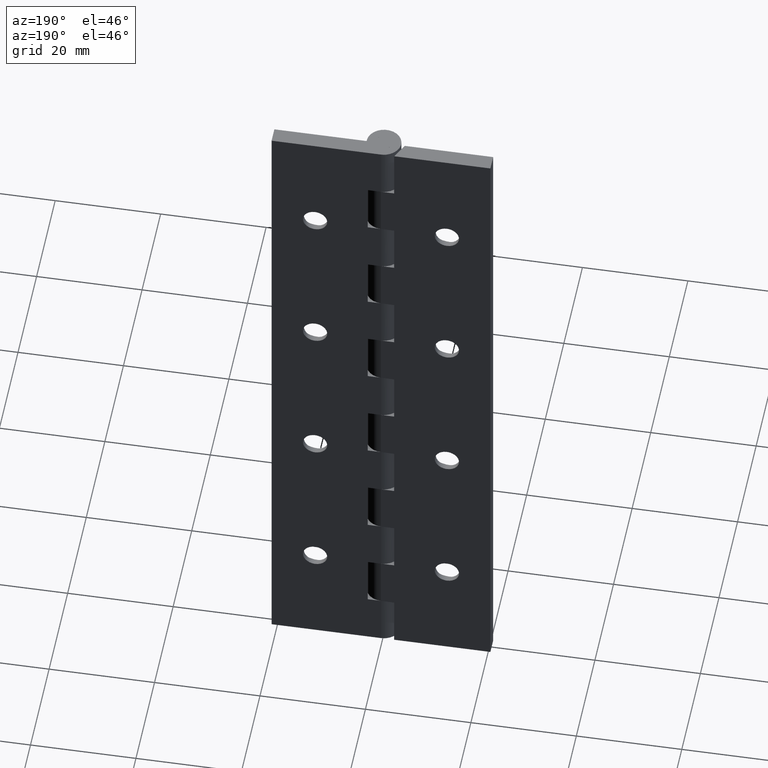
[diagram: clean part render]
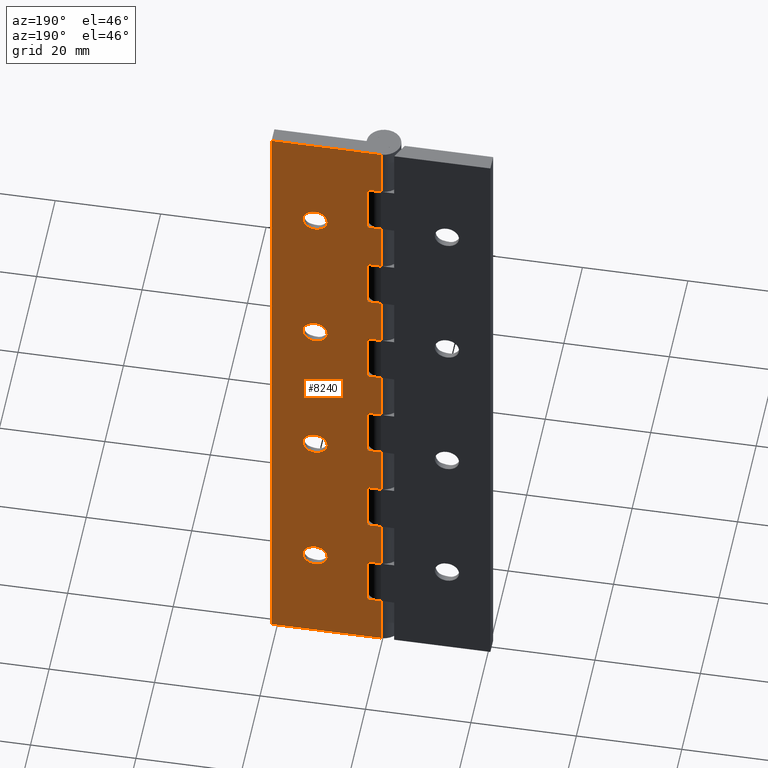
[diagram: same view with one face highlighted and labeled with its STEP entity id]
A machine part, auxiliary view. The second image highlights one B-rep face of the part: STEP entity #8240.
In plain terms, the highlighted face is a freeform B-spline surface patch.
Its self-contained STEP definition (entity closure, byte-faithful):
#4178=CARTESIAN_POINT('',(14.795709798106390,3.250002000000000,110.140407536402510));
#4179=VERTEX_POINT('',#4178);
#4180=CARTESIAN_POINT('',(12.500000000000000,3.250002000000000,107.699992000000410));
#4181=VERTEX_POINT('',#4180);
#4182=CARTESIAN_POINT('',(14.795709798106389,3.250001999999999,110.140407536402510));
#4183=CARTESIAN_POINT('',(14.799999999996738,3.250001999999999,110.070265308784430));
#4184=CARTESIAN_POINT('',(14.799999999996791,3.250002000000000,109.999992000000200));
#4185=CARTESIAN_POINT('',(14.799999999998439,3.250002000000001,107.699992000000320));
#4186=CARTESIAN_POINT('',(12.500000000000000,3.250002000000000,107.699992000000410));
#4194=(BOUNDED_CURVE()B_SPLINE_CURVE(2,(#4182,#4183,#4184,#4185,#4186),.UNSPECIFIED.,.F.,.U.)B_SPLINE_CURVE_WITH_KNOTS((3,2,3),(0.239332669456283,0.250000000000000,0.500000000000000),.UNSPECIFIED.)CURVE()GEOMETRIC_REPRESENTATION_ITEM()RATIONAL_B_SPLINE_CURVE((0.976071414178547,0.987502444883614,1.0,0.707106781186547,1.0))REPRESENTATION_ITEM(''));
#4195=EDGE_CURVE('',#4179,#4181,#4194,.T.);
#4197=CARTESIAN_POINT('',(10.204290201893610,3.250002000000000,109.859576463598300));
#4198=VERTEX_POINT('',#4197);
#4199=CARTESIAN_POINT('',(12.500000000000000,3.250002000000000,107.699992000000410));
#4200=CARTESIAN_POINT('',(10.336379724318482,3.250001999999999,107.699992000000490));
#4201=CARTESIAN_POINT('',(10.204290201893613,3.250002000000001,109.859576463598290));
#4209=(BOUNDED_CURVE()B_SPLINE_CURVE(2,(#4199,#4200,#4201),.UNSPECIFIED.,.F.,.U.)B_SPLINE_CURVE_WITH_KNOTS((3,3),(0.500000000000000,0.739332669456284),.UNSPECIFIED.)CURVE()GEOMETRIC_REPRESENTATION_ITEM()RATIONAL_B_SPLINE_CURVE((1.0,0.719604336302932,0.976071414178550))REPRESENTATION_ITEM(''));
#4210=EDGE_CURVE('',#4181,#4198,#4209,.T.);
#4277=CARTESIAN_POINT('',(12.500000000000000,3.250002000000000,112.299992000000400));
#4278=VERTEX_POINT('',#4277);
#4279=CARTESIAN_POINT('',(12.500000000000000,3.250002000000000,112.299992000000400));
#4280=CARTESIAN_POINT('',(14.663620275681504,3.250002000000001,112.299992000000300));
#4281=CARTESIAN_POINT('',(14.795709798106385,3.250001999999999,110.140407536402580));
#4289=(BOUNDED_CURVE()B_SPLINE_CURVE(2,(#4279,#4280,#4281),.UNSPECIFIED.,.F.,.U.)B_SPLINE_CURVE_WITH_KNOTS((3,3),(0.0,0.239332669456283),.UNSPECIFIED.)CURVE()GEOMETRIC_REPRESENTATION_ITEM()RATIONAL_B_SPLINE_CURVE((1.0,0.719604336302933,0.976071414178547))REPRESENTATION_ITEM(''));
#4290=EDGE_CURVE('',#4278,#4179,#4289,.T.);
#4324=CARTESIAN_POINT('',(10.204290201893613,3.250002000000000,109.859576463598320));
#4325=CARTESIAN_POINT('',(10.200000000003261,3.250002000000000,109.929718691216390));
#4326=CARTESIAN_POINT('',(10.200000000003209,3.250002000000000,109.999992000000600));
#4327=CARTESIAN_POINT('',(10.200000000001555,3.250002000000001,112.299992000000500));
#4328=CARTESIAN_POINT('',(12.500000000000000,3.250002000000000,112.299992000000400));
#4336=(BOUNDED_CURVE()B_SPLINE_CURVE(2,(#4324,#4325,#4326,#4327,#4328),.UNSPECIFIED.,.F.,.U.)B_SPLINE_CURVE_WITH_KNOTS((3,2,3),(0.739332669456284,0.750000000000000,1.0),.UNSPECIFIED.)CURVE()GEOMETRIC_REPRESENTATION_ITEM()RATIONAL_B_SPLINE_CURVE((0.976071414178550,0.987502444883616,1.0,0.707106781186547,1.0))REPRESENTATION_ITEM(''));
#4337=EDGE_CURVE('',#4198,#4278,#4336,.T.);
#4490=CARTESIAN_POINT('',(14.795709798106390,3.250002000000000,80.140407536402435));
#4491=VERTEX_POINT('',#4490);
#4492=CARTESIAN_POINT('',(12.500000000000000,3.250002000000000,77.699992000000321));
#4493=VERTEX_POINT('',#4492);
#4494=CARTESIAN_POINT('',(14.795709798106390,3.250002000000000,80.140407536402435));
#4495=CARTESIAN_POINT('',(14.799999999996741,3.250002000000000,80.070265308784343));
#4496=CARTESIAN_POINT('',(14.799999999996791,3.250002000000001,79.999992000000091));
#4497=CARTESIAN_POINT('',(14.799999999998439,3.250002000000001,77.699992000000236));
#4498=CARTESIAN_POINT('',(12.500000000000000,3.250002000000000,77.699992000000321));
#4506=(BOUNDED_CURVE()B_SPLINE_CURVE(2,(#4494,#4495,#4496,#4497,#4498),.UNSPECIFIED.,.F.,.U.)B_SPLINE_CURVE_WITH_KNOTS((3,2,3),(0.239332669456283,0.250000000000000,0.500000000000000),.UNSPECIFIED.)CURVE()GEOMETRIC_REPRESENTATION_ITEM()RATIONAL_B_SPLINE_CURVE((0.976071414178548,0.987502444883615,1.0,0.707106781186547,1.0))REPRESENTATION_ITEM(''));
#4507=EDGE_CURVE('',#4491,#4493,#4506,.T.);
#4509=CARTESIAN_POINT('',(10.204290201893610,3.250002000000000,79.859576463598160));
#4510=VERTEX_POINT('',#4509);
#4511=CARTESIAN_POINT('',(12.500000000000000,3.250002000000000,77.699992000000321));
#4512=CARTESIAN_POINT('',(10.336379724318491,3.250002000000000,77.699992000000421));
#4513=CARTESIAN_POINT('',(10.204290201893613,3.250002000000001,79.859576463598160));
#4521=(BOUNDED_CURVE()B_SPLINE_CURVE(2,(#4511,#4512,#4513),.UNSPECIFIED.,.F.,.U.)B_SPLINE_CURVE_WITH_KNOTS((3,3),(0.500000000000000,0.739332669456283),.UNSPECIFIED.)CURVE()GEOMETRIC_REPRESENTATION_ITEM()RATIONAL_B_SPLINE_CURVE((1.0,0.719604336302933,0.976071414178548))REPRESENTATION_ITEM(''));
#4522=EDGE_CURVE('',#4493,#4510,#4521,.T.);
#4589=CARTESIAN_POINT('',(12.500000000000000,3.250002000000000,82.299992000000302));
#4590=VERTEX_POINT('',#4589);
#4591=CARTESIAN_POINT('',(12.500000000000000,3.250002000000000,82.299992000000302));
#4592=CARTESIAN_POINT('',(14.663620275681509,3.250002000000000,82.299992000000188));
#4593=CARTESIAN_POINT('',(14.795709798106390,3.250002000000000,80.140407536402435));
#4601=(BOUNDED_CURVE()B_SPLINE_CURVE(2,(#4591,#4592,#4593),.UNSPECIFIED.,.F.,.U.)B_SPLINE_CURVE_WITH_KNOTS((3,3),(0.0,0.239332669456283),.UNSPECIFIED.)CURVE()GEOMETRIC_REPRESENTATION_ITEM()RATIONAL_B_SPLINE_CURVE((1.0,0.719604336302933,0.976071414178548))REPRESENTATION_ITEM(''));
#4602=EDGE_CURVE('',#4590,#4491,#4601,.T.);
#4636=CARTESIAN_POINT('',(10.204290201893613,3.250002000000000,79.859576463598160));
#4637=CARTESIAN_POINT('',(10.200000000003255,3.250002000000000,79.929718691216237));
#4638=CARTESIAN_POINT('',(10.200000000003209,3.250002000000000,79.999992000000489));
#4639=CARTESIAN_POINT('',(10.200000000001555,3.250002000000001,82.299992000000387));
#4640=CARTESIAN_POINT('',(12.500000000000000,3.250002000000000,82.299992000000302));
#4648=(BOUNDED_CURVE()B_SPLINE_CURVE(2,(#4636,#4637,#4638,#4639,#4640),.UNSPECIFIED.,.F.,.U.)B_SPLINE_CURVE_WITH_KNOTS((3,2,3),(0.739332669456283,0.750000000000000,1.0),.UNSPECIFIED.)CURVE()GEOMETRIC_REPRESENTATION_ITEM()RATIONAL_B_SPLINE_CURVE((0.976071414178547,0.987502444883614,1.0,0.707106781186547,1.0))REPRESENTATION_ITEM(''));
#4649=EDGE_CURVE('',#4510,#4590,#4648,.T.);
#4802=CARTESIAN_POINT('',(14.795709798106390,3.250002000000000,50.140407536402243));
#4803=VERTEX_POINT('',#4802);
#4804=CARTESIAN_POINT('',(12.500000000000000,3.250002000000000,47.699992000000087));
#4805=VERTEX_POINT('',#4804);
#4806=CARTESIAN_POINT('',(14.795709798106387,3.250002000000001,50.140407536402236));
#4807=CARTESIAN_POINT('',(14.799999999996745,3.250002000000000,50.070265308784158));
#4808=CARTESIAN_POINT('',(14.799999999996791,3.250002000000000,49.999991999999907));
#4809=CARTESIAN_POINT('',(14.799999999998439,3.250002000000001,47.699992000000009));
#4810=CARTESIAN_POINT('',(12.500000000000000,3.250002000000000,47.699992000000087));
#4818=(BOUNDED_CURVE()B_SPLINE_CURVE(2,(#4806,#4807,#4808,#4809,#4810),.UNSPECIFIED.,.F.,.U.)B_SPLINE_CURVE_WITH_KNOTS((3,2,3),(0.239332669456284,0.250000000000000,0.500000000000000),.UNSPECIFIED.)CURVE()GEOMETRIC_REPRESENTATION_ITEM()RATIONAL_B_SPLINE_CURVE((0.976071414178549,0.987502444883615,1.0,0.707106781186547,1.0))REPRESENTATION_ITEM(''));
#4819=EDGE_CURVE('',#4803,#4805,#4818,.T.);
#4821=CARTESIAN_POINT('',(10.204290201893610,3.250002000000000,49.859576463597961));
#4822=VERTEX_POINT('',#4821);
#4823=CARTESIAN_POINT('',(12.500000000000000,3.250002000000000,47.699992000000087));
#4824=CARTESIAN_POINT('',(10.336379724318491,3.250002000000000,47.699992000000201));
#4825=CARTESIAN_POINT('',(10.204290201893613,3.250002000000001,49.859576463597961));
#4833=(BOUNDED_CURVE()B_SPLINE_CURVE(2,(#4823,#4824,#4825),.UNSPECIFIED.,.F.,.U.)B_SPLINE_CURVE_WITH_KNOTS((3,3),(0.500000000000000,0.739332669456283),.UNSPECIFIED.)CURVE()GEOMETRIC_REPRESENTATION_ITEM()RATIONAL_B_SPLINE_CURVE((1.0,0.719604336302933,0.976071414178548))REPRESENTATION_ITEM(''));
#4834=EDGE_CURVE('',#4805,#4822,#4833,.T.);
#4901=CARTESIAN_POINT('',(12.500000000000000,3.250002000000000,52.299992000000103));
#4902=VERTEX_POINT('',#4901);
#4903=CARTESIAN_POINT('',(12.500000000000000,3.250002000000000,52.299992000000103));
#4904=CARTESIAN_POINT('',(14.663620275681509,3.250002000000000,52.299991999999996));
#4905=CARTESIAN_POINT('',(14.795709798106390,3.250002000000000,50.140407536402243));
#4913=(BOUNDED_CURVE()B_SPLINE_CURVE(2,(#4903,#4904,#4905),.UNSPECIFIED.,.F.,.U.)B_SPLINE_CURVE_WITH_KNOTS((3,3),(0.0,0.239332669456283),.UNSPECIFIED.)CURVE()GEOMETRIC_REPRESENTATION_ITEM()RATIONAL_B_SPLINE_CURVE((1.0,0.719604336302933,0.976071414178548))REPRESENTATION_ITEM(''));
#4914=EDGE_CURVE('',#4902,#4803,#4913,.T.);
#4948=CARTESIAN_POINT('',(10.204290201893613,3.250002000000000,49.859576463597961));
#4949=CARTESIAN_POINT('',(10.200000000003255,3.250002000000000,49.929718691216038));
#4950=CARTESIAN_POINT('',(10.200000000003209,3.250002000000000,49.999992000000297));
#4951=CARTESIAN_POINT('',(10.200000000001555,3.250002000000001,52.299992000000202));
#4952=CARTESIAN_POINT('',(12.500000000000000,3.250002000000000,52.299992000000103));
#4960=(BOUNDED_CURVE()B_SPLINE_CURVE(2,(#4948,#4949,#4950,#4951,#4952),.UNSPECIFIED.,.F.,.U.)B_SPLINE_CURVE_WITH_KNOTS((3,2,3),(0.739332669456283,0.750000000000000,1.0),.UNSPECIFIED.)CURVE()GEOMETRIC_REPRESENTATION_ITEM()RATIONAL_B_SPLINE_CURVE((0.976071414178547,0.987502444883614,1.0,0.707106781186547,1.0))REPRESENTATION_ITEM(''));
#4961=EDGE_CURVE('',#4822,#4902,#4960,.T.);
#5114=CARTESIAN_POINT('',(14.795709798106390,3.250002000000000,20.140407536402030));
#5115=VERTEX_POINT('',#5114);
#5116=CARTESIAN_POINT('',(12.500000000000000,3.250002000000000,17.699991999999899));
#5117=VERTEX_POINT('',#5116);
#5118=CARTESIAN_POINT('',(14.795709798106390,3.250002000000000,20.140407536402034));
#5119=CARTESIAN_POINT('',(14.799999999996746,3.250002000000000,20.070265308783945));
#5120=CARTESIAN_POINT('',(14.799999999996791,3.250002000000001,19.999991999999711));
#5121=CARTESIAN_POINT('',(14.799999999998439,3.250002000000001,17.699991999999817));
#5122=CARTESIAN_POINT('',(12.500000000000000,3.250002000000000,17.699991999999899));
#5130=(BOUNDED_CURVE()B_SPLINE_CURVE(2,(#5118,#5119,#5120,#5121,#5122),.UNSPECIFIED.,.F.,.U.)B_SPLINE_CURVE_WITH_KNOTS((3,2,3),(0.239332669456283,0.250000000000000,0.500000000000000),.UNSPECIFIED.)CURVE()GEOMETRIC_REPRESENTATION_ITEM()RATIONAL_B_SPLINE_CURVE((0.976071414178548,0.987502444883615,1.0,0.707106781186547,1.0))REPRESENTATION_ITEM(''));
#5131=EDGE_CURVE('',#5115,#5117,#5130,.T.);
#5133=CARTESIAN_POINT('',(10.204290201893610,3.250002000000001,19.859576463597769));
#5134=VERTEX_POINT('',#5133);
#5135=CARTESIAN_POINT('',(12.500000000000000,3.250002000000000,17.699991999999899));
#5136=CARTESIAN_POINT('',(10.336379724318491,3.250002000000000,17.699992000000002));
#5137=CARTESIAN_POINT('',(10.204290201893613,3.250002000000001,19.859576463597769));
#5145=(BOUNDED_CURVE()B_SPLINE_CURVE(2,(#5135,#5136,#5137),.UNSPECIFIED.,.F.,.U.)B_SPLINE_CURVE_WITH_KNOTS((3,3),(0.500000000000000,0.739332669456283),.UNSPECIFIED.)CURVE()GEOMETRIC_REPRESENTATION_ITEM()RATIONAL_B_SPLINE_CURVE((1.0,0.719604336302933,0.976071414178548))REPRESENTATION_ITEM(''));
#5146=EDGE_CURVE('',#5117,#5134,#5145,.T.);
#5213=CARTESIAN_POINT('',(12.500000000000000,3.250002000000000,22.299991999999900));
#5214=VERTEX_POINT('',#5213);
#5215=CARTESIAN_POINT('',(12.500000000000000,3.250002000000000,22.299991999999900));
#5216=CARTESIAN_POINT('',(14.663620275681517,3.250002000000001,22.299991999999801));
#5217=CARTESIAN_POINT('',(14.795709798106390,3.250002000000000,20.140407536402034));
#5225=(BOUNDED_CURVE()B_SPLINE_CURVE(2,(#5215,#5216,#5217),.UNSPECIFIED.,.F.,.U.)B_SPLINE_CURVE_WITH_KNOTS((3,3),(0.0,0.239332669456283),.UNSPECIFIED.)CURVE()GEOMETRIC_REPRESENTATION_ITEM()RATIONAL_B_SPLINE_CURVE((1.0,0.719604336302932,0.976071414178548))REPRESENTATION_ITEM(''));
#5226=EDGE_CURVE('',#5214,#5115,#5225,.T.);
#5260=CARTESIAN_POINT('',(10.204290201893613,3.250002000000001,19.859576463597769));
#5261=CARTESIAN_POINT('',(10.200000000003261,3.250002000000001,19.929718691215843));
#5262=CARTESIAN_POINT('',(10.200000000003209,3.250002000000001,19.999992000000098));
#5263=CARTESIAN_POINT('',(10.200000000001555,3.250002000000001,22.299991999999985));
#5264=CARTESIAN_POINT('',(12.500000000000000,3.250002000000000,22.299991999999900));
#5272=(BOUNDED_CURVE()B_SPLINE_CURVE(2,(#5260,#5261,#5262,#5263,#5264),.UNSPECIFIED.,.F.,.U.)B_SPLINE_CURVE_WITH_KNOTS((3,2,3),(0.739332669456283,0.750000000000000,1.0),.UNSPECIFIED.)CURVE()GEOMETRIC_REPRESENTATION_ITEM()RATIONAL_B_SPLINE_CURVE((0.976071414178548,0.987502444883615,1.0,0.707106781186547,1.0))REPRESENTATION_ITEM(''));
#5273=EDGE_CURVE('',#5134,#5214,#5272,.T.);
#6740=CARTESIAN_POINT('',(-5.969960E-016,3.250002000000000,99.999992000000091));
#6741=VERTEX_POINT('',#6740);
#6768=CARTESIAN_POINT('',(-5.969960E-016,3.250002000000000,109.999992000000010));
#6769=VERTEX_POINT('',#6768);
#6795=CARTESIAN_POINT('',(-5.969960E-016,3.250002000000000,99.999992000000091));
#6796=CARTESIAN_POINT('',(-5.969960E-016,3.250002000000000,109.999992000000010));
#6797=QUASI_UNIFORM_CURVE('',1,(#6795,#6796),.UNSPECIFIED.,.F.,.U.);
#6798=EDGE_CURVE('',#6741,#6769,#6797,.T.);
#6861=CARTESIAN_POINT('',(-5.969960E-016,3.250002000000000,79.999992000000105));
#6862=VERTEX_POINT('',#6861);
#6890=CARTESIAN_POINT('',(-5.969960E-016,3.250002000000000,89.999992000000091));
#6891=VERTEX_POINT('',#6890);
#6917=CARTESIAN_POINT('',(-5.969960E-016,3.250002000000000,79.999992000000105));
#6918=CARTESIAN_POINT('',(-5.969960E-016,3.250002000000000,89.999992000000091));
#6919=QUASI_UNIFORM_CURVE('',1,(#6917,#6918),.UNSPECIFIED.,.F.,.U.);
#6920=EDGE_CURVE('',#6862,#6891,#6919,.T.);
#6983=CARTESIAN_POINT('',(-5.969960E-016,3.250002000000000,59.999992000000098));
#6984=VERTEX_POINT('',#6983);
#7013=CARTESIAN_POINT('',(-5.969960E-016,3.250002000000000,69.999992000000091));
#7014=VERTEX_POINT('',#7013);
#7040=CARTESIAN_POINT('',(-5.969960E-016,3.250002000000000,59.999992000000098));
#7041=CARTESIAN_POINT('',(-5.969960E-016,3.250002000000000,69.999992000000091));
#7042=QUASI_UNIFORM_CURVE('',1,(#7040,#7041),.UNSPECIFIED.,.F.,.U.);
#7043=EDGE_CURVE('',#6984,#7014,#7042,.T.);
#7106=CARTESIAN_POINT('',(-5.969960E-016,3.250002000000000,39.999992000000049));
#7107=VERTEX_POINT('',#7106);
#7134=CARTESIAN_POINT('',(-5.969960E-016,3.250002000000000,49.999992000000098));
#7135=VERTEX_POINT('',#7134);
#7161=CARTESIAN_POINT('',(-5.969960E-016,3.250002000000000,39.999992000000049));
#7162=CARTESIAN_POINT('',(-5.969960E-016,3.250002000000000,49.999992000000098));
#7163=QUASI_UNIFORM_CURVE('',1,(#7161,#7162),.UNSPECIFIED.,.F.,.U.);
#7164=EDGE_CURVE('',#7107,#7135,#7163,.T.);
#7183=CARTESIAN_POINT('',(-5.969960E-016,3.250002000000000,19.999992000000152));
#7184=VERTEX_POINT('',#7183);
#7211=CARTESIAN_POINT('',(2.499982999999825,3.250002000000000,19.999992000000152));
#7212=VERTEX_POINT('',#7211);
#7213=CARTESIAN_POINT('',(-5.969960E-016,3.250002000000000,19.999992000000152));
#7214=CARTESIAN_POINT('',(2.499982999999825,3.250002000000000,19.999992000000152));
#7215=QUASI_UNIFORM_CURVE('',1,(#7213,#7214),.UNSPECIFIED.,.F.,.U.);
#7216=EDGE_CURVE('',#7184,#7212,#7215,.T.);
#7260=CARTESIAN_POINT('',(2.499982999999825,3.250002000000000,9.999992000000120));
#7261=VERTEX_POINT('',#7260);
#7267=CARTESIAN_POINT('',(-5.969960E-016,3.250002000000000,9.999992000000120));
#7268=VERTEX_POINT('',#7267);
#7269=CARTESIAN_POINT('',(-5.969960E-016,3.250002000000000,9.999992000000120));
#7270=CARTESIAN_POINT('',(2.499982999999825,3.250002000000000,9.999992000000120));
#7271=QUASI_UNIFORM_CURVE('',1,(#7269,#7270),.UNSPECIFIED.,.F.,.U.);
#7272=EDGE_CURVE('',#7268,#7261,#7271,.T.);
#7315=CARTESIAN_POINT('',(2.499982999999825,3.250002000000000,9.999992000000120));
#7316=CARTESIAN_POINT('',(2.499982999999825,3.250002000000000,19.999992000000152));
#7317=QUASI_UNIFORM_CURVE('',1,(#7315,#7316),.UNSPECIFIED.,.F.,.U.);
#7318=EDGE_CURVE('',#7261,#7212,#7317,.T.);
#7336=CARTESIAN_POINT('',(2.499982999999825,3.250002000000000,39.999992000000049));
#7337=VERTEX_POINT('',#7336);
#7338=CARTESIAN_POINT('',(-5.969960E-016,3.250002000000000,39.999992000000049));
#7339=CARTESIAN_POINT('',(2.499982999999825,3.250002000000000,39.999992000000049));
#7340=QUASI_UNIFORM_CURVE('',1,(#7338,#7339),.UNSPECIFIED.,.F.,.U.);
#7341=EDGE_CURVE('',#7107,#7337,#7340,.T.);
#7385=CARTESIAN_POINT('',(2.499982999999825,3.250002000000000,29.999992000000049));
#7386=VERTEX_POINT('',#7385);
#7392=CARTESIAN_POINT('',(-5.969960E-016,3.250002000000000,29.999992000000049));
#7393=VERTEX_POINT('',#7392);
#7394=CARTESIAN_POINT('',(-5.969960E-016,3.250002000000000,29.999992000000049));
#7395=CARTESIAN_POINT('',(2.499982999999825,3.250002000000000,29.999992000000049));
#7396=QUASI_UNIFORM_CURVE('',1,(#7394,#7395),.UNSPECIFIED.,.F.,.U.);
#7397=EDGE_CURVE('',#7393,#7386,#7396,.T.);
#7440=CARTESIAN_POINT('',(2.499982999999825,3.250002000000000,29.999992000000049));
#7441=CARTESIAN_POINT('',(2.499982999999825,3.250002000000000,39.999992000000049));
#7442=QUASI_UNIFORM_CURVE('',1,(#7440,#7441),.UNSPECIFIED.,.F.,.U.);
#7443=EDGE_CURVE('',#7386,#7337,#7442,.T.);
#7461=CARTESIAN_POINT('',(2.499982999999825,3.250002000000000,59.999992000000098));
#7462=VERTEX_POINT('',#7461);
#7463=CARTESIAN_POINT('',(-5.969960E-016,3.250002000000000,59.999992000000098));
#7464=CARTESIAN_POINT('',(2.499982999999825,3.250002000000000,59.999992000000098));
#7465=QUASI_UNIFORM_CURVE('',1,(#7463,#7464),.UNSPECIFIED.,.F.,.U.);
#7466=EDGE_CURVE('',#6984,#7462,#7465,.T.);
#7502=CARTESIAN_POINT('',(2.499982999999825,3.250002000000000,49.999992000000098));
#7503=VERTEX_POINT('',#7502);
#7509=CARTESIAN_POINT('',(-5.969960E-016,3.250002000000000,49.999992000000098));
#7510=CARTESIAN_POINT('',(2.499982999999825,3.250002000000000,49.999992000000098));
#7511=QUASI_UNIFORM_CURVE('',1,(#7509,#7510),.UNSPECIFIED.,.F.,.U.);
#7512=EDGE_CURVE('',#7135,#7503,#7511,.T.);
#7530=CARTESIAN_POINT('',(2.499982999999825,3.250002000000000,49.999992000000098));
#7531=CARTESIAN_POINT('',(2.499982999999825,3.250002000000000,59.999992000000098));
#7532=QUASI_UNIFORM_CURVE('',1,(#7530,#7531),.UNSPECIFIED.,.F.,.U.);
#7533=EDGE_CURVE('',#7503,#7462,#7532,.T.);
#7551=CARTESIAN_POINT('',(2.499982999999825,3.250002000000000,79.999992000000105));
#7552=VERTEX_POINT('',#7551);
#7553=CARTESIAN_POINT('',(-5.969960E-016,3.250002000000000,79.999992000000105));
#7554=CARTESIAN_POINT('',(2.499982999999825,3.250002000000000,79.999992000000105));
#7555=QUASI_UNIFORM_CURVE('',1,(#7553,#7554),.UNSPECIFIED.,.F.,.U.);
#7556=EDGE_CURVE('',#6862,#7552,#7555,.T.);
#7592=CARTESIAN_POINT('',(2.499982999999825,3.250002000000000,69.999992000000091));
#7593=VERTEX_POINT('',#7592);
#7599=CARTESIAN_POINT('',(-5.969960E-016,3.250002000000000,69.999992000000091));
#7600=CARTESIAN_POINT('',(2.499982999999825,3.250002000000000,69.999992000000091));
#7601=QUASI_UNIFORM_CURVE('',1,(#7599,#7600),.UNSPECIFIED.,.F.,.U.);
#7602=EDGE_CURVE('',#7014,#7593,#7601,.T.);
#7620=CARTESIAN_POINT('',(2.499982999999825,3.250002000000000,69.999992000000091));
#7621=CARTESIAN_POINT('',(2.499982999999825,3.250002000000000,79.999992000000105));
#7622=QUASI_UNIFORM_CURVE('',1,(#7620,#7621),.UNSPECIFIED.,.F.,.U.);
#7623=EDGE_CURVE('',#7593,#7552,#7622,.T.);
#7641=CARTESIAN_POINT('',(2.499982999999825,3.250002000000000,99.999992000000091));
#7642=VERTEX_POINT('',#7641);
#7643=CARTESIAN_POINT('',(-5.969960E-016,3.250002000000000,99.999992000000091));
#7644=CARTESIAN_POINT('',(2.499982999999825,3.250002000000000,99.999992000000091));
#7645=QUASI_UNIFORM_CURVE('',1,(#7643,#7644),.UNSPECIFIED.,.F.,.U.);
#7646=EDGE_CURVE('',#6741,#7642,#7645,.T.);
#7682=CARTESIAN_POINT('',(2.499982999999825,3.250002000000000,89.999992000000091));
#7683=VERTEX_POINT('',#7682);
#7689=CARTESIAN_POINT('',(-5.969960E-016,3.250002000000000,89.999992000000091));
#7690=CARTESIAN_POINT('',(2.499982999999825,3.250002000000000,89.999992000000091));
#7691=QUASI_UNIFORM_CURVE('',1,(#7689,#7690),.UNSPECIFIED.,.F.,.U.);
#7692=EDGE_CURVE('',#6891,#7683,#7691,.T.);
#7710=CARTESIAN_POINT('',(2.499982999999825,3.250002000000000,89.999992000000091));
#7711=CARTESIAN_POINT('',(2.499982999999825,3.250002000000000,99.999992000000091));
#7712=QUASI_UNIFORM_CURVE('',1,(#7710,#7711),.UNSPECIFIED.,.F.,.U.);
#7713=EDGE_CURVE('',#7683,#7642,#7712,.T.);
#7738=CARTESIAN_POINT('',(-5.969960E-016,3.250002000000000,119.999992000000010));
#7739=VERTEX_POINT('',#7738);
#7765=CARTESIAN_POINT('',(2.499982999999825,3.250002000000000,119.999992000000010));
#7766=VERTEX_POINT('',#7765);
#7767=CARTESIAN_POINT('',(-5.969960E-016,3.250002000000000,119.999992000000010));
#7768=CARTESIAN_POINT('',(2.499982999999825,3.250002000000000,119.999992000000010));
#7769=QUASI_UNIFORM_CURVE('',1,(#7767,#7768),.UNSPECIFIED.,.F.,.U.);
#7770=EDGE_CURVE('',#7739,#7766,#7769,.T.);
#7806=CARTESIAN_POINT('',(2.499982999999825,3.250002000000000,109.999992000000010));
#7807=VERTEX_POINT('',#7806);
#7813=CARTESIAN_POINT('',(-5.969960E-016,3.250002000000000,109.999992000000010));
#7814=CARTESIAN_POINT('',(2.499982999999825,3.250002000000000,109.999992000000010));
#7815=QUASI_UNIFORM_CURVE('',1,(#7813,#7814),.UNSPECIFIED.,.F.,.U.);
#7816=EDGE_CURVE('',#6769,#7807,#7815,.T.);
#7834=CARTESIAN_POINT('',(2.499982999999825,3.250002000000000,109.999992000000010));
#7835=CARTESIAN_POINT('',(2.499982999999825,3.250002000000000,119.999992000000010));
#7836=QUASI_UNIFORM_CURVE('',1,(#7834,#7835),.UNSPECIFIED.,.F.,.U.);
#7837=EDGE_CURVE('',#7807,#7766,#7836,.T.);
#7900=CARTESIAN_POINT('',(0.0,3.250002000000000,0.0));
#7901=VERTEX_POINT('',#7900);
#7902=CARTESIAN_POINT('',(0.0,3.250002000000000,0.0));
#7903=CARTESIAN_POINT('',(-5.969960E-016,3.250002000000000,9.999992000000120));
#7904=QUASI_UNIFORM_CURVE('',1,(#7902,#7903),.UNSPECIFIED.,.F.,.U.);
#7905=EDGE_CURVE('',#7901,#7268,#7904,.T.);
#7942=CARTESIAN_POINT('',(20.750000000000000,3.250002000000000,129.999991999999990));
#7943=VERTEX_POINT('',#7942);
#7956=CARTESIAN_POINT('',(20.750000000000000,3.250002000000000,0.0));
#7957=VERTEX_POINT('',#7956);
#7963=CARTESIAN_POINT('',(20.750000000000000,3.250002000000000,0.0));
#7964=CARTESIAN_POINT('',(20.750000000000000,3.250002000000000,129.999991999999990));
#7965=QUASI_UNIFORM_CURVE('',1,(#7963,#7964),.UNSPECIFIED.,.F.,.U.);
#7966=EDGE_CURVE('',#7957,#7943,#7965,.T.);
#7977=CARTESIAN_POINT('',(0.0,3.250002000000000,129.999991999999990));
#7978=VERTEX_POINT('',#7977);
#7979=CARTESIAN_POINT('',(20.750000000000000,3.250002000000000,129.999991999999990));
#7980=CARTESIAN_POINT('',(0.0,3.250002000000000,129.999991999999990));
#7981=QUASI_UNIFORM_CURVE('',1,(#7979,#7980),.UNSPECIFIED.,.F.,.U.);
#7982=EDGE_CURVE('',#7943,#7978,#7981,.T.);
#8046=CARTESIAN_POINT('',(20.750000000000000,3.250002000000000,0.0));
#8047=CARTESIAN_POINT('',(0.0,3.250002000000000,0.0));
#8048=QUASI_UNIFORM_CURVE('',1,(#8046,#8047),.UNSPECIFIED.,.F.,.U.);
#8049=EDGE_CURVE('',#7957,#7901,#8048,.T.);
#8105=CARTESIAN_POINT('',(-5.969960E-016,3.250002000000000,119.999992000000010));
#8106=CARTESIAN_POINT('',(0.0,3.250002000000000,129.999991999999990));
#8107=QUASI_UNIFORM_CURVE('',1,(#8105,#8106),.UNSPECIFIED.,.F.,.U.);
#8108=EDGE_CURVE('',#7739,#7978,#8107,.T.);
#8177=CARTESIAN_POINT('',(-1.036462459782475,3.250002000000000,-6.493499348434797));
#8178=CARTESIAN_POINT('',(-1.036462459782475,3.250002000000000,136.493494835306310));
#8179=CARTESIAN_POINT('',(21.786463016340850,3.250002000000000,-6.493499348434797));
#8180=CARTESIAN_POINT('',(21.786463016340850,3.250002000000000,136.493494835306310));
#8181=B_SPLINE_SURFACE_WITH_KNOTS('',1,1,((#8177,#8179),(#8178,#8180)),.UNSPECIFIED.,.F.,.F.,.U.,(2,2),(2,2),(0.0,142.986994183741100),(0.0,22.822925476123320),.UNSPECIFIED.);
#8182=ORIENTED_EDGE('',*,*,#7272,.T.);
#8183=ORIENTED_EDGE('',*,*,#7318,.T.);
#8184=ORIENTED_EDGE('',*,*,#7216,.F.);
#8185=CARTESIAN_POINT('',(-5.969960E-016,3.250002000000000,19.999992000000152));
#8186=CARTESIAN_POINT('',(-5.969960E-016,3.250002000000000,29.999992000000049));
#8187=QUASI_UNIFORM_CURVE('',1,(#8185,#8186),.UNSPECIFIED.,.F.,.U.);
#8188=EDGE_CURVE('',#7184,#7393,#8187,.T.);
#8189=ORIENTED_EDGE('',*,*,#8188,.T.);
#8190=ORIENTED_EDGE('',*,*,#7397,.T.);
#8191=ORIENTED_EDGE('',*,*,#7443,.T.);
#8192=ORIENTED_EDGE('',*,*,#7341,.F.);
#8193=ORIENTED_EDGE('',*,*,#7164,.T.);
#8194=ORIENTED_EDGE('',*,*,#7512,.T.);
#8195=ORIENTED_EDGE('',*,*,#7533,.T.);
#8196=ORIENTED_EDGE('',*,*,#7466,.F.);
#8197=ORIENTED_EDGE('',*,*,#7043,.T.);
#8198=ORIENTED_EDGE('',*,*,#7602,.T.);
#8199=ORIENTED_EDGE('',*,*,#7623,.T.);
#8200=ORIENTED_EDGE('',*,*,#7556,.F.);
#8201=ORIENTED_EDGE('',*,*,#6920,.T.);
#8202=ORIENTED_EDGE('',*,*,#7692,.T.);
#8203=ORIENTED_EDGE('',*,*,#7713,.T.);
#8204=ORIENTED_EDGE('',*,*,#7646,.F.);
#8205=ORIENTED_EDGE('',*,*,#6798,.T.);
#8206=ORIENTED_EDGE('',*,*,#7816,.T.);
#8207=ORIENTED_EDGE('',*,*,#7837,.T.);
#8208=ORIENTED_EDGE('',*,*,#7770,.F.);
#8209=ORIENTED_EDGE('',*,*,#8108,.T.);
#8210=ORIENTED_EDGE('',*,*,#7982,.F.);
#8211=ORIENTED_EDGE('',*,*,#7966,.F.);
#8212=ORIENTED_EDGE('',*,*,#8049,.T.);
#8213=ORIENTED_EDGE('',*,*,#7905,.T.);
#8214=EDGE_LOOP('',(#8182,#8183,#8184,#8189,#8190,#8191,#8192,#8193,#8194,#8195,#8196,#8197,#8198,#8199,#8200,#8201,#8202,#8203,#8204,#8205,#8206,#8207,#8208,#8209,#8210,#8211,#8212,#8213));
#8215=FACE_OUTER_BOUND('',#8214,.T.);
#8216=ORIENTED_EDGE('',*,*,#5146,.F.);
#8217=ORIENTED_EDGE('',*,*,#5131,.F.);
#8218=ORIENTED_EDGE('',*,*,#5226,.F.);
#8219=ORIENTED_EDGE('',*,*,#5273,.F.);
#8220=EDGE_LOOP('',(#8216,#8217,#8218,#8219));
#8221=FACE_BOUND('',#8220,.T.);
#8222=ORIENTED_EDGE('',*,*,#4834,.F.);
#8223=ORIENTED_EDGE('',*,*,#4819,.F.);
#8224=ORIENTED_EDGE('',*,*,#4914,.F.);
#8225=ORIENTED_EDGE('',*,*,#4961,.F.);
#8226=EDGE_LOOP('',(#8222,#8223,#8224,#8225));
#8227=FACE_BOUND('',#8226,.T.);
#8228=ORIENTED_EDGE('',*,*,#4522,.F.);
#8229=ORIENTED_EDGE('',*,*,#4507,.F.);
#8230=ORIENTED_EDGE('',*,*,#4602,.F.);
#8231=ORIENTED_EDGE('',*,*,#4649,.F.);
#8232=EDGE_LOOP('',(#8228,#8229,#8230,#8231));
#8233=FACE_BOUND('',#8232,.T.);
#8234=ORIENTED_EDGE('',*,*,#4210,.F.);
#8235=ORIENTED_EDGE('',*,*,#4195,.F.);
#8236=ORIENTED_EDGE('',*,*,#4290,.F.);
#8237=ORIENTED_EDGE('',*,*,#4337,.F.);
#8238=EDGE_LOOP('',(#8234,#8235,#8236,#8237));
#8239=FACE_BOUND('',#8238,.T.);
#8240=ADVANCED_FACE('',(#8215,#8221,#8227,#8233,#8239),#8181,.T.);